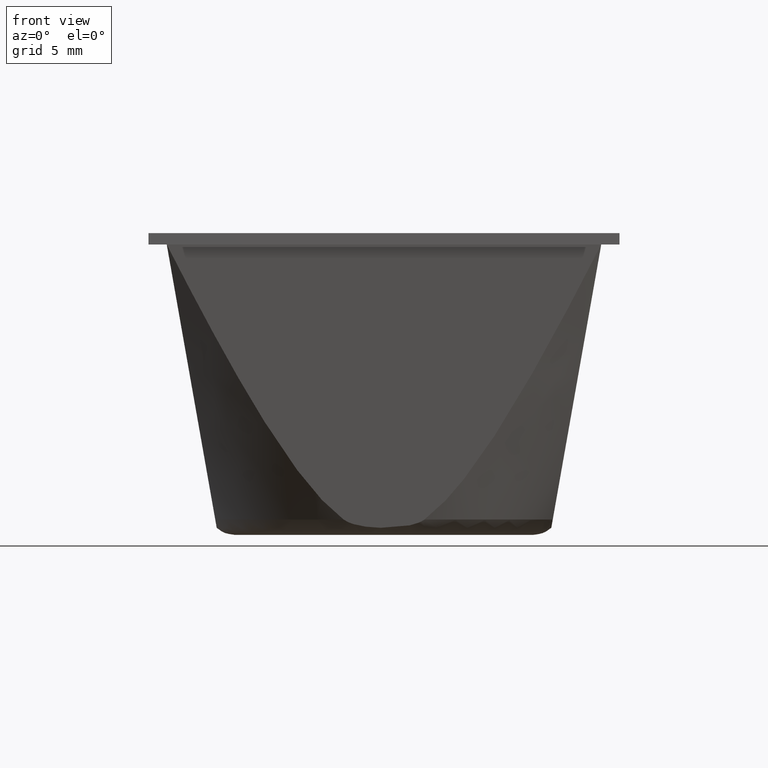
[diagram: clean part render]
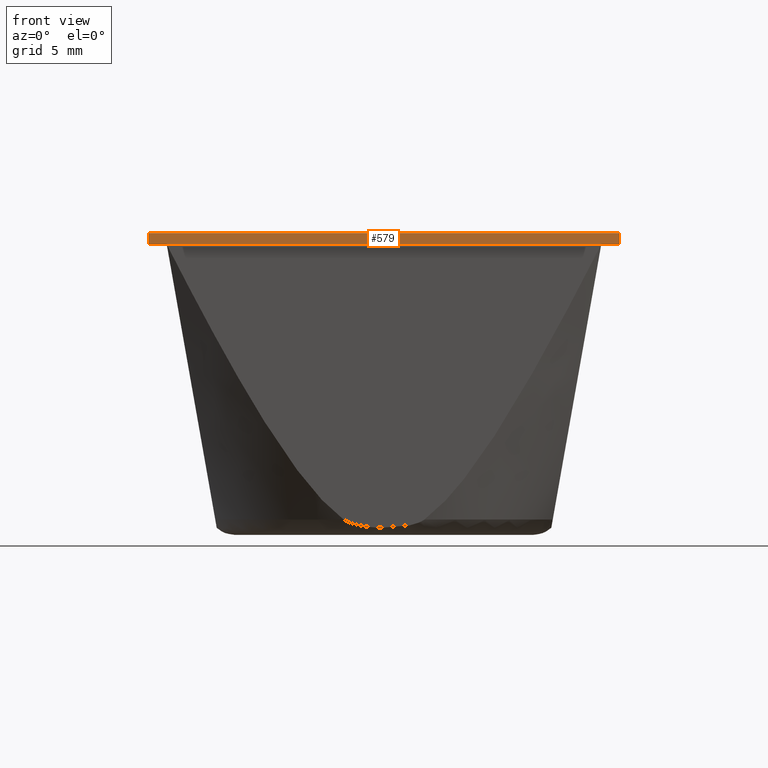
[diagram: same view with one face highlighted and labeled with its STEP entity id]
A machine part, front view. The second image highlights one B-rep face of the part: STEP entity #579.
In plain terms, the highlighted face is a freeform B-spline surface patch.
Its self-contained STEP definition (entity closure, byte-faithful):
#433=CARTESIAN_POINT('',(10.300000000000001,-10.300000000000001,12.699999999999999));
#434=VERTEX_POINT('',#433);
#440=CARTESIAN_POINT('',(-10.300000000000001,-10.300000000000001,12.699999999999999));
#441=VERTEX_POINT('',#440);
#442=CARTESIAN_POINT('',(10.300000000000001,-10.300000000000001,12.699999999999999));
#443=CARTESIAN_POINT('',(-10.300000000000001,-10.300000000000001,12.699999999999999));
#444=QUASI_UNIFORM_CURVE('',1,(#442,#443),.UNSPECIFIED.,.F.,.U.);
#445=EDGE_CURVE('',#434,#441,#444,.T.);
#499=CARTESIAN_POINT('',(10.300000000000001,-10.300000000000001,13.199999999999999));
#500=VERTEX_POINT('',#499);
#513=CARTESIAN_POINT('',(-10.300000000000001,-10.300000000000001,13.199999999999999));
#514=VERTEX_POINT('',#513);
#520=CARTESIAN_POINT('',(10.300000000000001,-10.300000000000001,13.199999999999999));
#521=CARTESIAN_POINT('',(-10.300000000000001,-10.300000000000001,13.199999999999999));
#522=QUASI_UNIFORM_CURVE('',1,(#520,#521),.UNSPECIFIED.,.F.,.U.);
#523=EDGE_CURVE('',#500,#514,#522,.T.);
#554=CARTESIAN_POINT('',(-10.300000000000001,-10.300000000000001,13.199999999999999));
#555=CARTESIAN_POINT('',(-10.300000000000001,-10.300000000000001,12.699999999999999));
#556=QUASI_UNIFORM_CURVE('',1,(#554,#555),.UNSPECIFIED.,.F.,.U.);
#557=EDGE_CURVE('',#514,#441,#556,.T.);
#564=CARTESIAN_POINT('',(-11.328970153451269,-10.300000000000001,13.224974810829689));
#565=CARTESIAN_POINT('',(-11.328970153451269,-10.300000000000001,12.675024809190701));
#566=CARTESIAN_POINT('',(11.328970521807969,-10.300000000000001,13.224974810829689));
#567=CARTESIAN_POINT('',(11.328970521807969,-10.300000000000001,12.675024809190701));
#568=B_SPLINE_SURFACE_WITH_KNOTS('',1,1,((#564,#566),(#565,#567)),.UNSPECIFIED.,.F.,.F.,.U.,(2,2),(2,2),(0.041708648617193,0.958291984682158),(0.0,22.657940675259240),.UNSPECIFIED.);
#569=ORIENTED_EDGE('',*,*,#445,.F.);
#570=CARTESIAN_POINT('',(10.300000000000001,-10.300000000000001,13.199999999999999));
#571=CARTESIAN_POINT('',(10.300000000000001,-10.300000000000001,12.699999999999999));
#572=QUASI_UNIFORM_CURVE('',1,(#570,#571),.UNSPECIFIED.,.F.,.U.);
#573=EDGE_CURVE('',#500,#434,#572,.T.);
#574=ORIENTED_EDGE('',*,*,#573,.F.);
#575=ORIENTED_EDGE('',*,*,#523,.T.);
#576=ORIENTED_EDGE('',*,*,#557,.T.);
#577=EDGE_LOOP('',(#569,#574,#575,#576));
#578=FACE_OUTER_BOUND('',#577,.T.);
#579=ADVANCED_FACE('',(#578),#568,.T.);